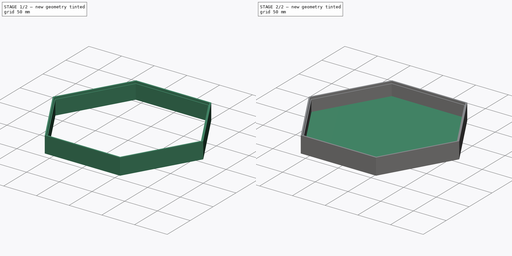
[diagram: build sequence overview — one tinted view per stage of 2, left to right]
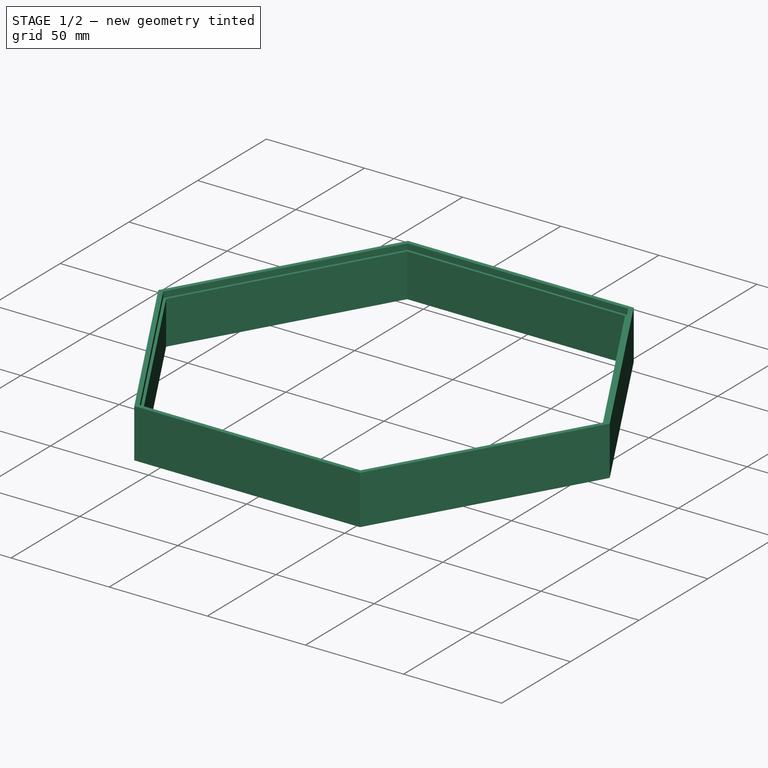
[diagram: stage 1 of 2 — iso view after this stage's code; geometry added in this stage tinted green]
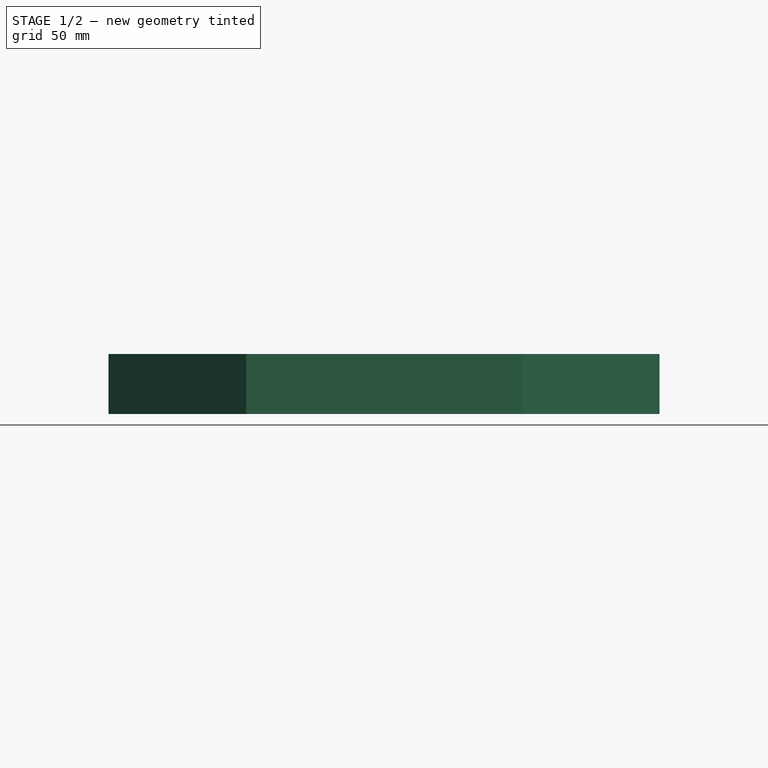
[diagram: stage 1 of 2 — front view after this stage's code; geometry added in this stage tinted green]
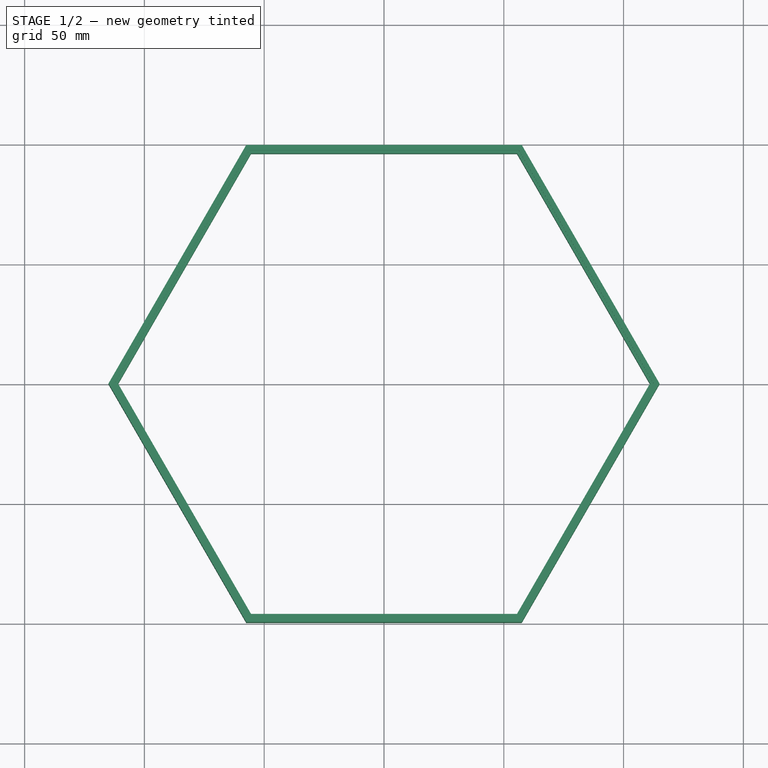
[diagram: stage 1 of 2 — top view after this stage's code; geometry added in this stage tinted green]
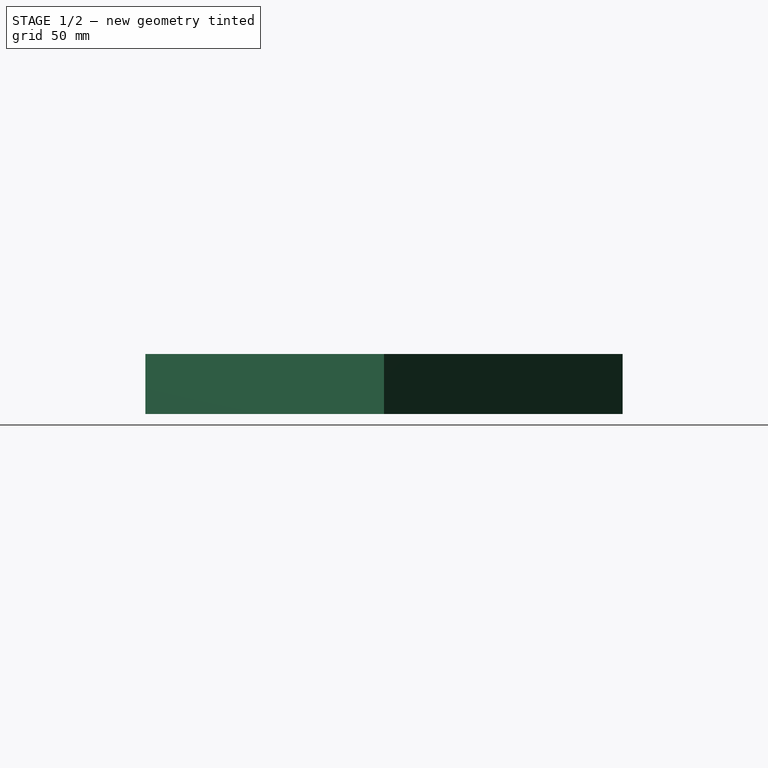
[diagram: stage 1 of 2 — right view after this stage's code; geometry added in this stage tinted green]
FCSTD DOCUMENT  (FreeCAD 1.0R39285 (Git))
Label: tray
License: All rights reserved
LicenseURL: https://en.wikipedia.org/wiki/All_rights_reserved
objects: Sketcher::SketchObject×3, Part::Extrusion×3, Part::MultiFuse×1
note: 10 computed .brp shape members not serialized (recipe doc carries the construction recipe); baked Part::Feature solids carry a one-line shape summary decoded from their .brp
EXTERNAL_REF file=dims.FCStd obj=Spreadsheet

FEATURE [Part::Extrusion] Extrude001
  Base = -> Sketch001
  Dir = (0,0,1)
  DirMode = 2
  FaceMakerClass = Part::FaceMakerBullseye
  FaceMakerMode = 3
  LengthFwd = 25
  LengthRev = 0
  Solid = true
  Symmetric = false
  expr: LengthFwd = dims#Spreadsheet.tray_height
FEATURE [Part::Extrusion] Extrude002
  Base = -> Sketch002
  Dir = (0,0,1)
  DirMode = 2
  FaceMakerClass = Part::FaceMakerBullseye
  FaceMakerMode = 3
  LengthFwd = 22
  LengthRev = 0
  Solid = true
  Symmetric = false
  expr: LengthFwd = dims#Spreadsheet.tray_height - dims#Spreadsheet.grid_height
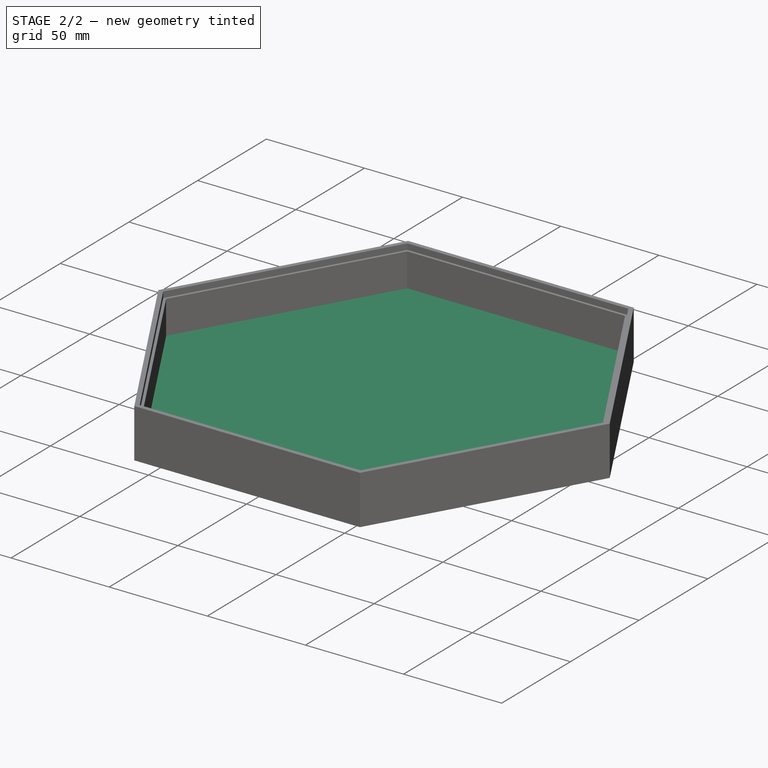
[diagram: stage 2 of 2 — iso view after this stage's code; geometry added in this stage tinted green]
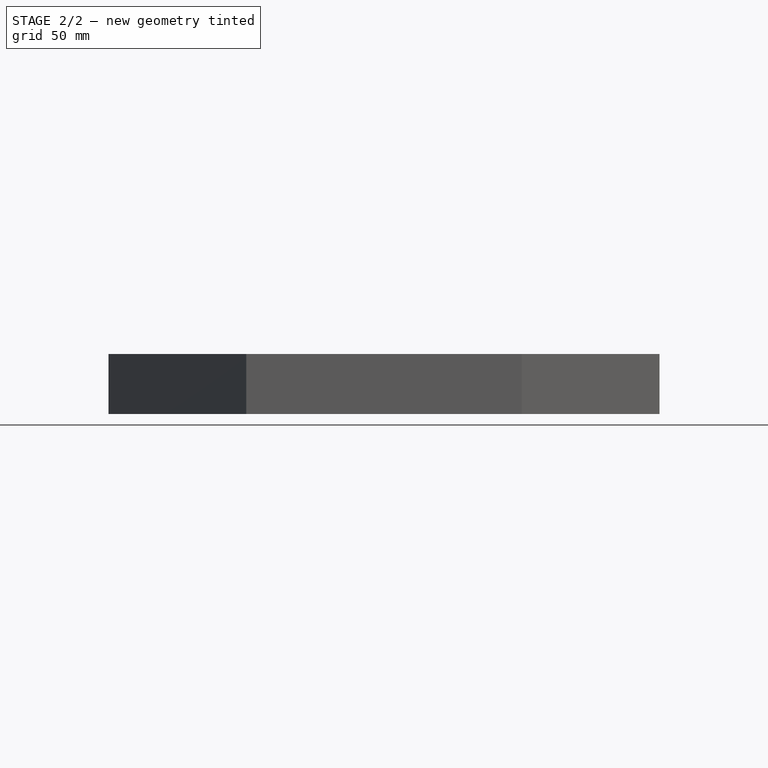
[diagram: stage 2 of 2 — front view after this stage's code; geometry added in this stage tinted green]
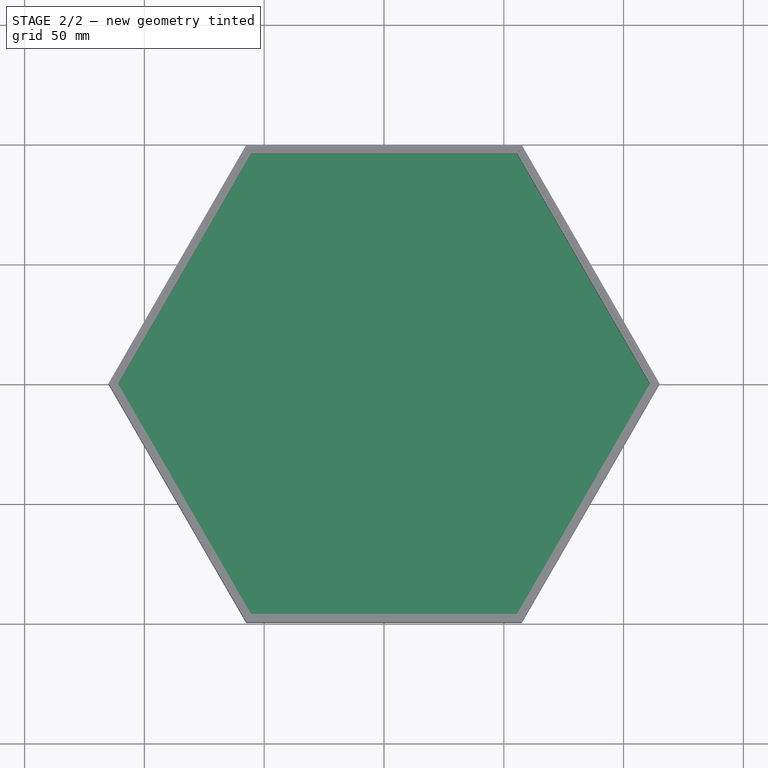
[diagram: stage 2 of 2 — top view after this stage's code; geometry added in this stage tinted green]
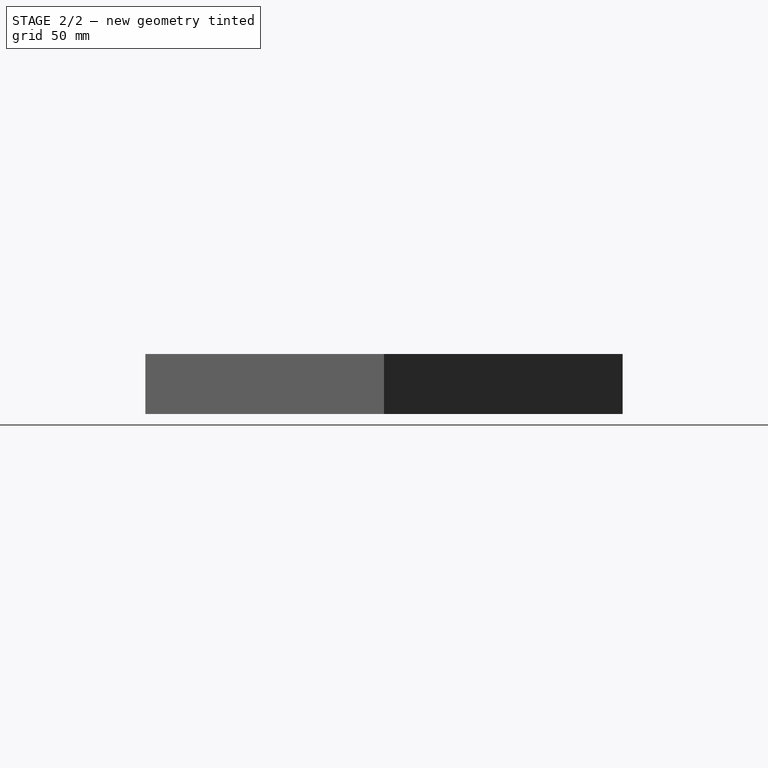
[diagram: stage 2 of 2 — right view after this stage's code; geometry added in this stage tinted green]
FEATURE [Sketcher::SketchObject] Sketch
  ArcFitTolerance = 1e-06
  FullyConstrained = true
  MakeInternals = false
  expr: Constraints[19] = dims#Spreadsheet.width
  sketch-geometry (7):
    g0: LineSegment StartX=115 StartY=0 StartZ=0 EndX=57.5 EndY=99.5929 EndZ=0
    g1: LineSegment StartX=57.5 StartY=99.5929 StartZ=0 EndX=-57.5 EndY=99.5929 EndZ=0
    g2: LineSegment StartX=-57.5 StartY=99.5929 StartZ=0 EndX=-115 EndY=0 EndZ=0
    g3: LineSegment StartX=-115 StartY=0 StartZ=0 EndX=-57.5 EndY=-99.5929 EndZ=0
    g4: LineSegment StartX=-57.5 StartY=-99.5929 StartZ=0 EndX=57.5 EndY=-99.5929 EndZ=0
    g5: LineSegment StartX=57.5 StartY=-99.5929 StartZ=0 EndX=115 EndY=0 EndZ=0
    g6: Circle [constr] CenterX=0 CenterY=0 CenterZ=0 NormalX=0 NormalY=0 NormalZ=1 AngleXU=0 Radius=115
  constraints (16):
    c: Coincident(g0,g1)
    c: Coincident(g1,g2)
    c: Coincident(g2,g3)
    c: Coincident(g3,g4)
    c: Coincident(g4,g5)
    c: Coincident(g5,g0)
    c: Equal(g0, g1-g5) x5
    c: PointOnObject(g0,g6)
    c: PointOnObject(g1,g6)
    c: PointOnObject(g2,g6)
    c: PointOnObject(g3,g6)
    c: PointOnObject(g4,g6)
    c: PointOnObject(g5,g6)
    c: Coincident(g6,g-1)
    c: PointOnObject(g5,g-1)
    c: Diameter(g6) = 230
FEATURE [Sketcher::SketchObject] Sketch001
  ArcFitTolerance = 1e-06
  AttachmentSupport = -> [Sketch]
  FullyConstrained = true
  MakeInternals = false
  MapMode = 2
  expr: Constraints[19] = dims#Spreadsheet.width - dims#Spreadsheet.thickness
  expr: Constraints[39] = dims#Spreadsheet.width
  sketch-geometry (14):
    g0: LineSegment StartX=112.5 StartY=0 StartZ=0 EndX=56.25 EndY=97.4279 EndZ=0
    g1: LineSegment StartX=56.25 StartY=97.4279 StartZ=0 EndX=-56.25 EndY=97.4279 EndZ=0
    g2: LineSegment StartX=-56.25 StartY=97.4279 StartZ=0 EndX=-112.5 EndY=0 EndZ=0
    g3: LineSegment StartX=-112.5 StartY=0 StartZ=0 EndX=-56.25 EndY=-97.4279 EndZ=0
    g4: LineSegment StartX=-56.25 StartY=-97.4279 StartZ=0 EndX=56.25 EndY=-97.4279 EndZ=0
    g5: LineSegment StartX=56.25 StartY=-97.4279 StartZ=0 EndX=112.5 EndY=0 EndZ=0
    g6: Circle [constr] CenterX=0 CenterY=0 CenterZ=0 NormalX=0 NormalY=0 NormalZ=1 AngleXU=0 Radius=112.5
    g7: LineSegment StartX=115 StartY=0 StartZ=0 EndX=57.5 EndY=99.5929 EndZ=0
    g8: LineSegment StartX=57.5 StartY=99.5929 StartZ=0 EndX=-57.5 EndY=99.5929 EndZ=0
    g9: LineSegment StartX=-57.5 StartY=99.5929 StartZ=0 EndX=-115 EndY=1.42e-14 EndZ=0
    g10: LineSegment StartX=-115 StartY=1.42e-14 StartZ=0 EndX=-57.5 EndY=-99.5929 EndZ=0
    g11: LineSegment StartX=-57.5 StartY=-99.5929 StartZ=0 EndX=57.5 EndY=-99.5929 EndZ=0
    g12: LineSegment StartX=57.5 StartY=-99.5929 StartZ=0 EndX=115 EndY=0 EndZ=0
    g13: Circle [constr] CenterX=0 CenterY=0 CenterZ=0 NormalX=0 NormalY=0 NormalZ=1 AngleXU=0 Radius=115
  constraints (32):
    c: Coincident(g0,g1)
    c: Coincident(g1,g2)
    c: Coincident(g2,g3)
    c: Coincident(g3,g4)
    c: Coincident(g4,g5)
    c: Coincident(g5,g0)
    c: Equal(g0, g1-g5) x5
    c: PointOnObject(g0,g6)
    c: PointOnObject(g1,g6)
    c: PointOnObject(g2,g6)
    c: PointOnObject(g3,g6)
    c: PointOnObject(g4,g6)
    c: PointOnObject(g5,g6)
    c: Coincident(g6,g-1)
    c: PointOnObject(g5,g-1)
    c: Diameter(g6) = 225
    c: Coincident(g7,g8)
    c: Coincident(g8,g9)
    c: Coincident(g9,g10)
    c: Coincident(g10,g11)
    c: Coincident(g11,g12)
    c: Coincident(g12,g7)
    c: Equal(g7, g8-g12) x5
    c: PointOnObject(g7,g13)
    c: PointOnObject(g8,g13)
    c: PointOnObject(g9,g13)
    c: PointOnObject(g10,g13)
    c: PointOnObject(g11,g13)
    c: PointOnObject(g12,g13)
    c: Coincident(g13,g6)
    c: PointOnObject(g12,g-1)
    c: Diameter(g13) = 230
FEATURE [Sketcher::SketchObject] Sketch002
  ArcFitTolerance = 1e-06
  AttachmentSupport = -> [Sketch001]
  FullyConstrained = true
  MakeInternals = false
  MapMode = 2
  expr: Constraints[19] = dims#Spreadsheet.width - dims#Spreadsheet.thickness
  expr: Constraints[39] = dims#Spreadsheet.width - dims#Spreadsheet.thickness - dims#Spreadsheet.grid_width
  sketch-geometry (14):
    g0: LineSegment StartX=112.5 StartY=0 StartZ=0 EndX=56.25 EndY=97.4279 EndZ=0
    g1: LineSegment StartX=56.25 StartY=97.4279 StartZ=0 EndX=-56.25 EndY=97.4279 EndZ=0
    g2: LineSegment StartX=-56.25 StartY=97.4279 StartZ=0 EndX=-112.5 EndY=0 EndZ=0
    g3: LineSegment StartX=-112.5 StartY=0 StartZ=0 EndX=-56.25 EndY=-97.4279 EndZ=0
    g4: LineSegment StartX=-56.25 StartY=-97.4279 StartZ=0 EndX=56.25 EndY=-97.4279 EndZ=0
    g5: LineSegment StartX=56.25 StartY=-97.4279 StartZ=0 EndX=112.5 EndY=0 EndZ=0
    g6: Circle [constr] CenterX=0 CenterY=0 CenterZ=0 NormalX=0 NormalY=0 NormalZ=1 AngleXU=0 Radius=112.5
    g7: LineSegment StartX=111 StartY=0 StartZ=0 EndX=55.5 EndY=96.1288 EndZ=0
    g8: LineSegment StartX=55.5 StartY=96.1288 StartZ=0 EndX=-55.5 EndY=96.1288 EndZ=0
    g9: LineSegment StartX=-55.5 StartY=96.1288 StartZ=0 EndX=-111 EndY=-1.42e-14 EndZ=0
    g10: LineSegment StartX=-111 StartY=-1.42e-14 StartZ=0 EndX=-55.5 EndY=-96.1288 EndZ=0
    g11: LineSegment StartX=-55.5 StartY=-96.1288 StartZ=0 EndX=55.5 EndY=-96.1288 EndZ=0
    g12: LineSegment StartX=55.5 StartY=-96.1288 StartZ=0 EndX=111 EndY=0 EndZ=0
    g13: Circle [constr] CenterX=0 CenterY=0 CenterZ=0 NormalX=0 NormalY=0 NormalZ=1 AngleXU=0 Radius=111
  constraints (32):
    c: Coincident(g0,g1)
    c: Coincident(g1,g2)
    c: Coincident(g2,g3)
    c: Coincident(g3,g4)
    c: Coincident(g4,g5)
    c: Coincident(g5,g0)
    c: Equal(g0, g1-g5) x5
    c: PointOnObject(g0,g6)
    c: PointOnObject(g1,g6)
    c: PointOnObject(g2,g6)
    c: PointOnObject(g3,g6)
    c: PointOnObject(g4,g6)
    c: PointOnObject(g5,g6)
    c: Coincident(g6,g-1)
    c: PointOnObject(g5,g-1)
    c: Diameter(g6) = 225
    c: Coincident(g7,g8)
    c: Coincident(g8,g9)
    c: Coincident(g9,g10)
    c: Coincident(g10,g11)
    c: Coincident(g11,g12)
    c: Coincident(g12,g7)
    c: Equal(g7, g8-g12) x5
    c: PointOnObject(g7,g13)
    c: PointOnObject(g8,g13)
    c: PointOnObject(g9,g13)
    c: PointOnObject(g10,g13)
    c: PointOnObject(g11,g13)
    c: PointOnObject(g12,g13)
    c: Coincident(g13,g6)
    c: PointOnObject(g12,g-1)
    c: Diameter(g13) = 222
FEATURE [Part::Extrusion] Extrude
  Base = -> Sketch
  Dir = (0,0,1)
  DirMode = 2
  FaceMakerClass = Part::FaceMakerBullseye
  FaceMakerMode = 3
  LengthFwd = 5
  LengthRev = 0
  Solid = true
  Symmetric = false
  expr: LengthFwd = dims#Spreadsheet.thickness
FEATURE [Part::MultiFuse] Fusion
  Refine = true
  Shapes = -> [Extrude002,Extrude,Extrude001]
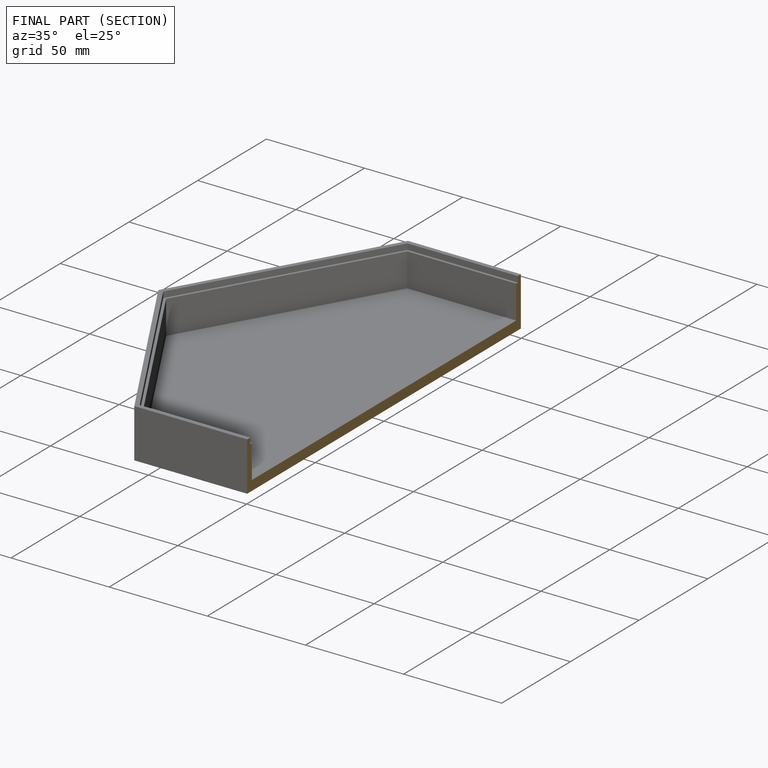
[diagram: finished part — half-section view (interior)]
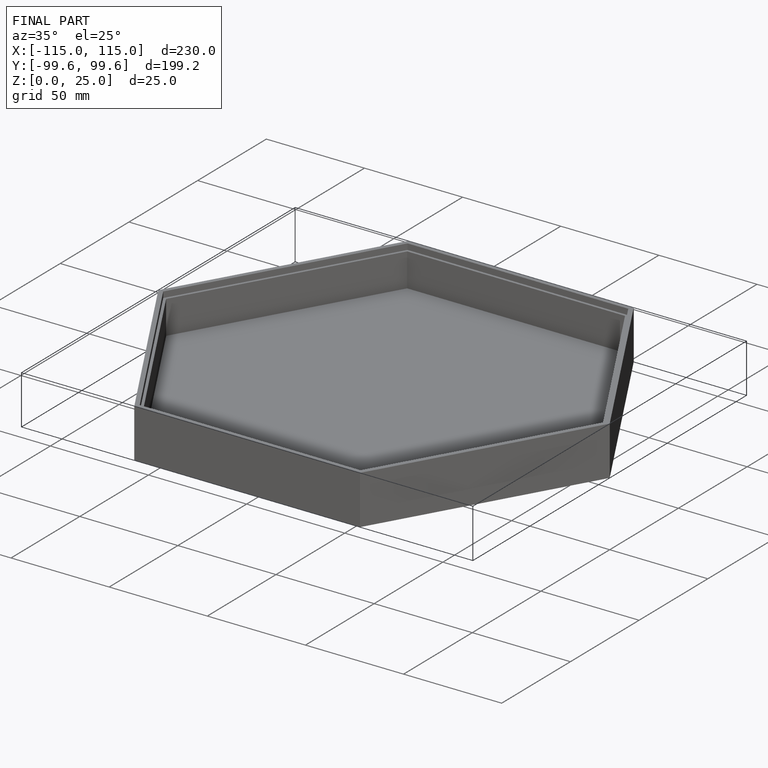
[diagram: finished part — iso view with bounding-box wireframe]
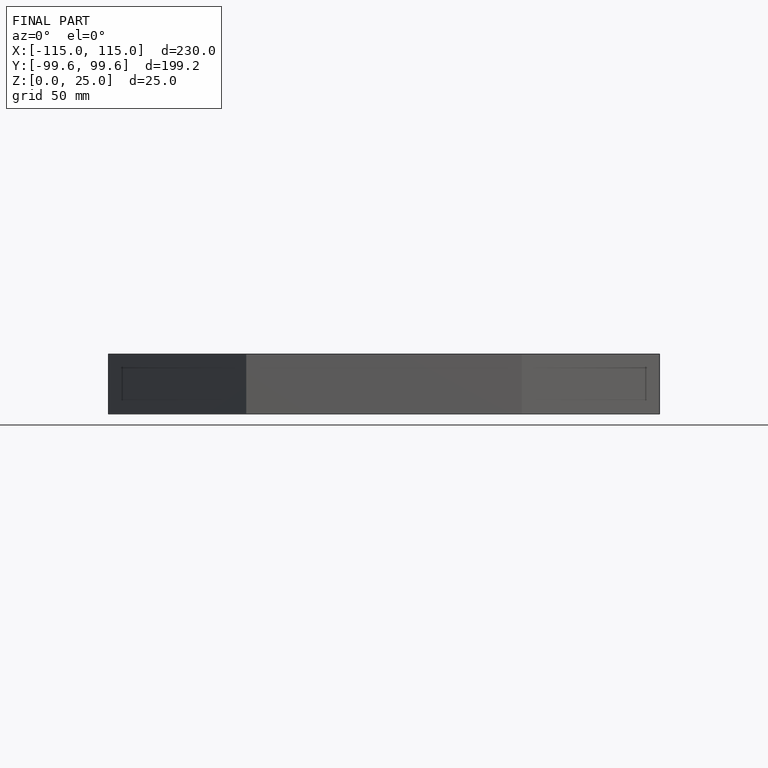
[diagram: finished part — front view with bounding-box wireframe]
